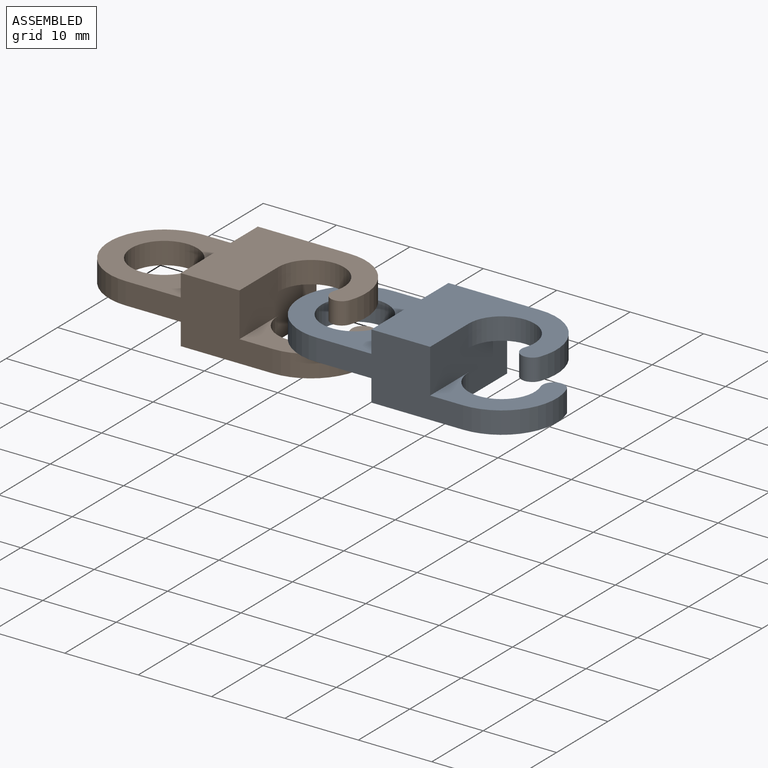
[diagram: assembled view]
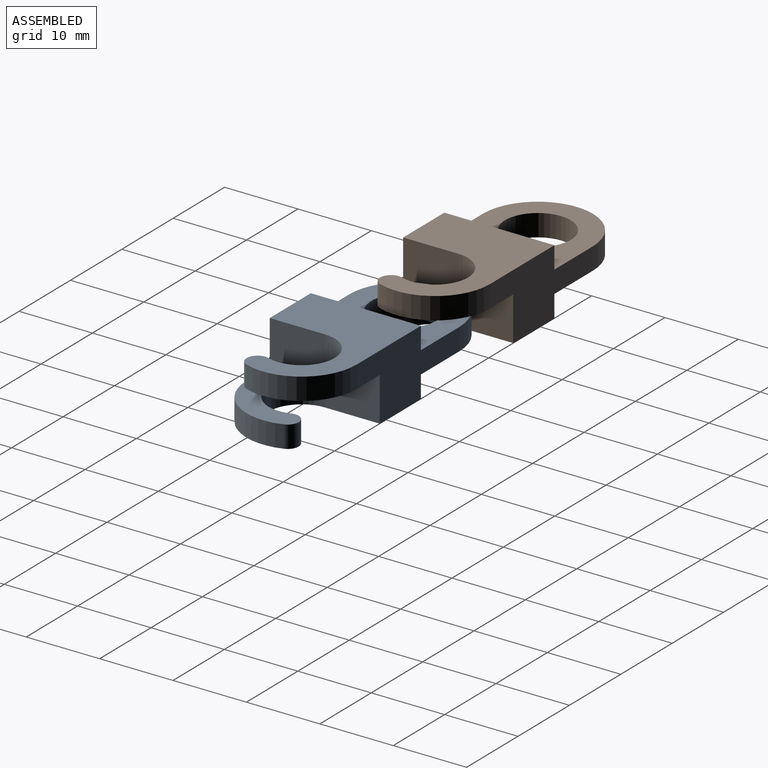
[diagram: assembled view, second angle]
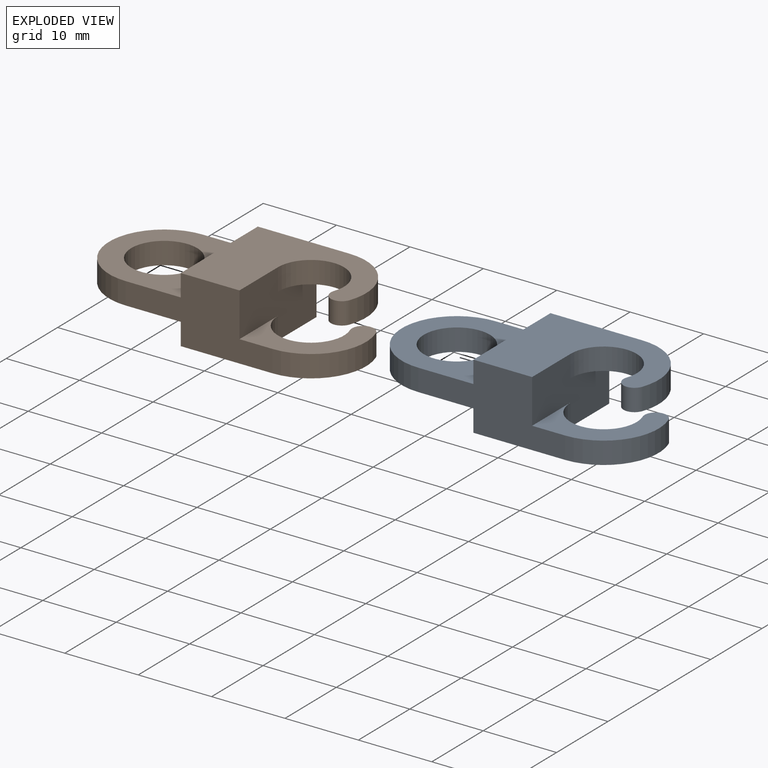
[diagram: exploded view]
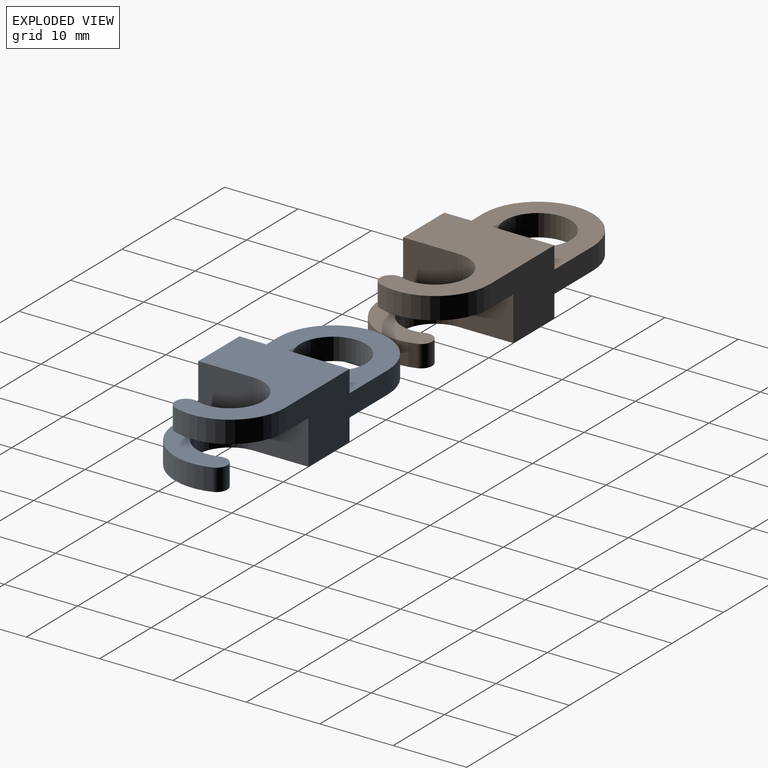
[diagram: exploded view, second angle]
ASSEMBLY  parts=2 mates=2
PART A: 19 faces, bbox 35x15x9 mm
  f0: plane 20x9mm, normal (0,1,0), area 108mm2, adj f1,f3,f4,f7,f11,f12,f13,f15
  f1: cylinder r=7.5mm len=10.07mm, axis (0,0,-1), area 43.2mm2, adj f0,f10,f13,f17
  f2: cylinder r=4.5mm len=9mm, axis (0,0,-1), area 47.1mm2, adj f12,f14,f16,f18
  f3: plane 15x15mm, normal (0,0,1), area 137.2mm2, adj f0,f4,f5,f6,f11
  f4: cylinder r=7.5mm len=15mm, axis (0,0,-1), area 70.7mm2, adj f0,f3,f5,f7
  f5: plane 20x9mm, normal (0,-1,0), area 108mm2, adj f3,f4,f7,f8,f11,f12,f13,f15
  f6: cylinder r=4.5mm len=9mm, axis (0,0,-1), area 84.8mm2, adj f3,f7
  f7: plane 15x15mm, normal (0,0,-1), area 137.2mm2, adj f0,f4,f5,f6,f15
  f8: cylinder r=7.5mm len=10.07mm, axis (0,0,-1), area 43.2mm2, adj f5,f14,f16,f18
  f9: cylinder r=4.5mm len=9mm, axis (0,0,-1), area 47.1mm2, adj f10,f12,f13,f17
  f10: cylinder r=1.5mm len=3mm, axis (0,0,-1), area 14.1mm2, adj f1,f9,f13,f17
  f11: plane 15x3mm, normal (-1,0,0), area 45mm2, adj f0,f3,f5,f13
  f12: plane 15x9mm, normal (1,0,0), area 90mm2, adj f0,f2,f5,f9,f13,f16,f17,f18
  f13: plane 20x15mm, normal (0,0,1), area 175.9mm2, adj f0,f1,f5,f9,f10,f11,f12
  f14: cylinder r=1.5mm len=3mm, axis (0,0,1), area 14.1mm2, adj f2,f8,f16,f18
  f15: plane 15x3mm, normal (-1,0,0), area 45mm2, adj f0,f5,f7,f16
  f16: plane 20x15mm, normal (0,0,-1), area 175.9mm2, adj f0,f2,f5,f8,f12,f14,f15
  f17: plane 12x11.05mm, normal (0,0,-1), area 55.9mm2, adj f0,f1,f9,f10,f12
  f18: plane 12x11.05mm, normal (0,0,1), area 55.9mm2, adj f2,f5,f8,f12,f14
PART B: same geometry as A
PLACE A t=(38.56,-1.49,-2.55)mm
PLACE B t=(12.58,-1.49,-2.55)mm
MATE planar B.f7 <-> A.f18  axis (0,0,-1) through (3.61,-1.49,-4.05)mm
MATE planar A.f5 <-> B.f5  axis (0,-1,0) through (39.22,-8.99,-2.93)mm
